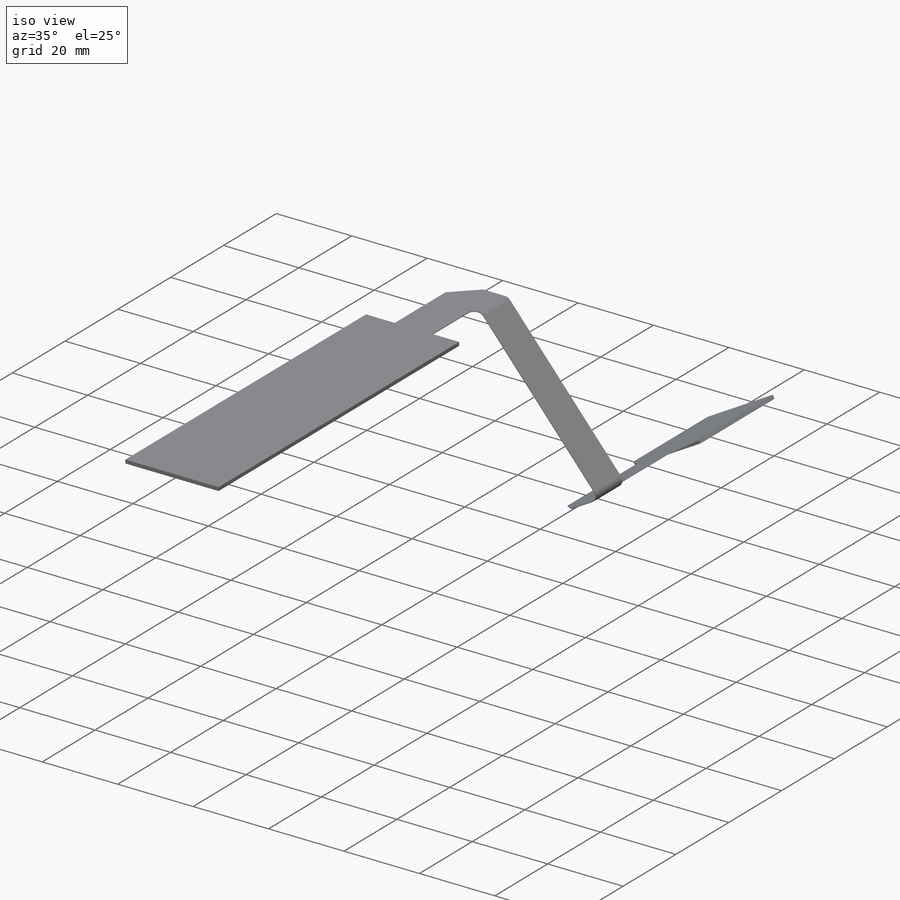
[diagram: iso view]
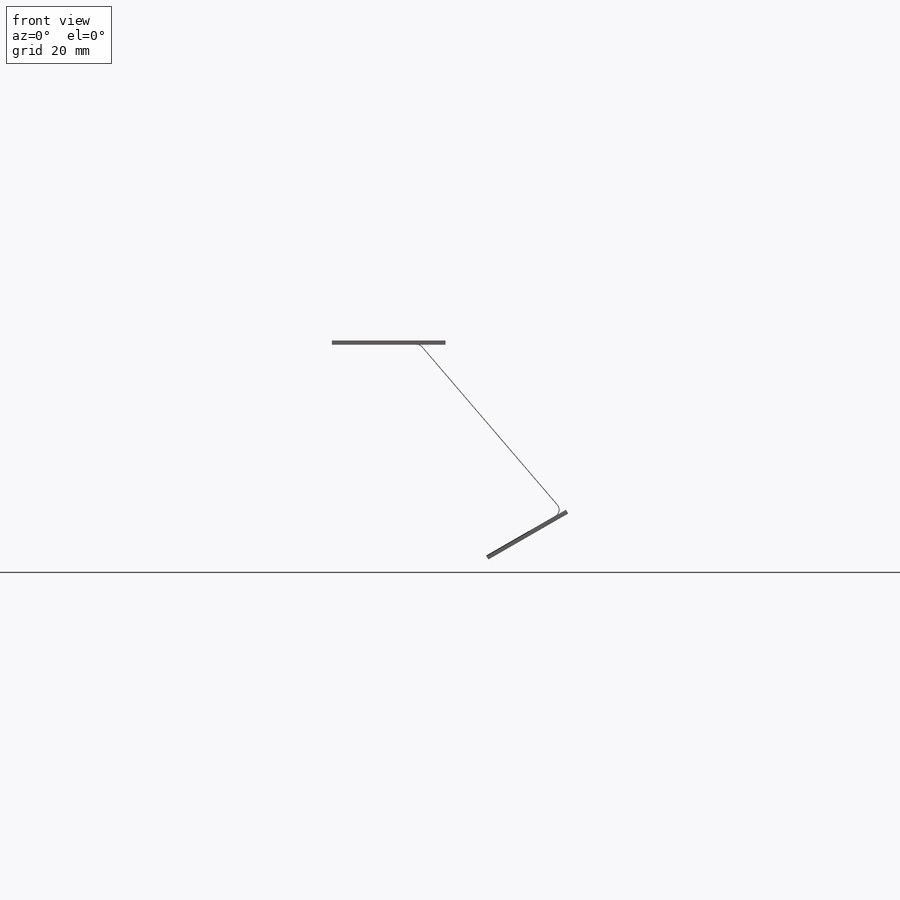
[diagram: front view]
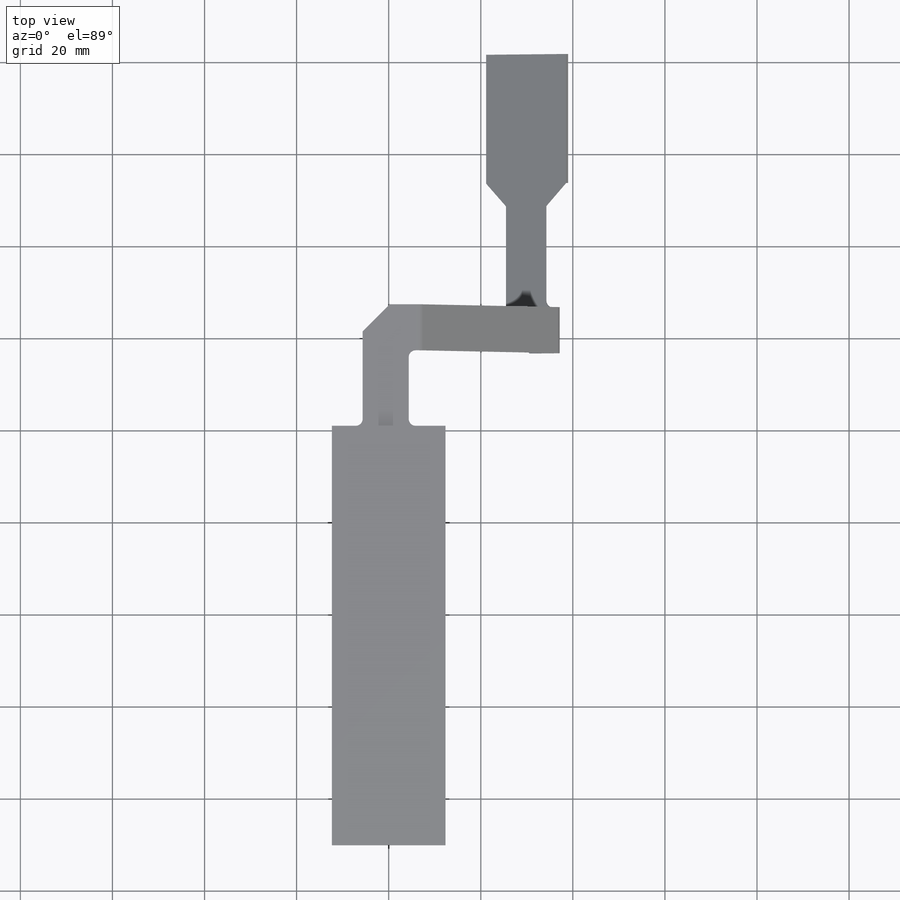
[diagram: top view]
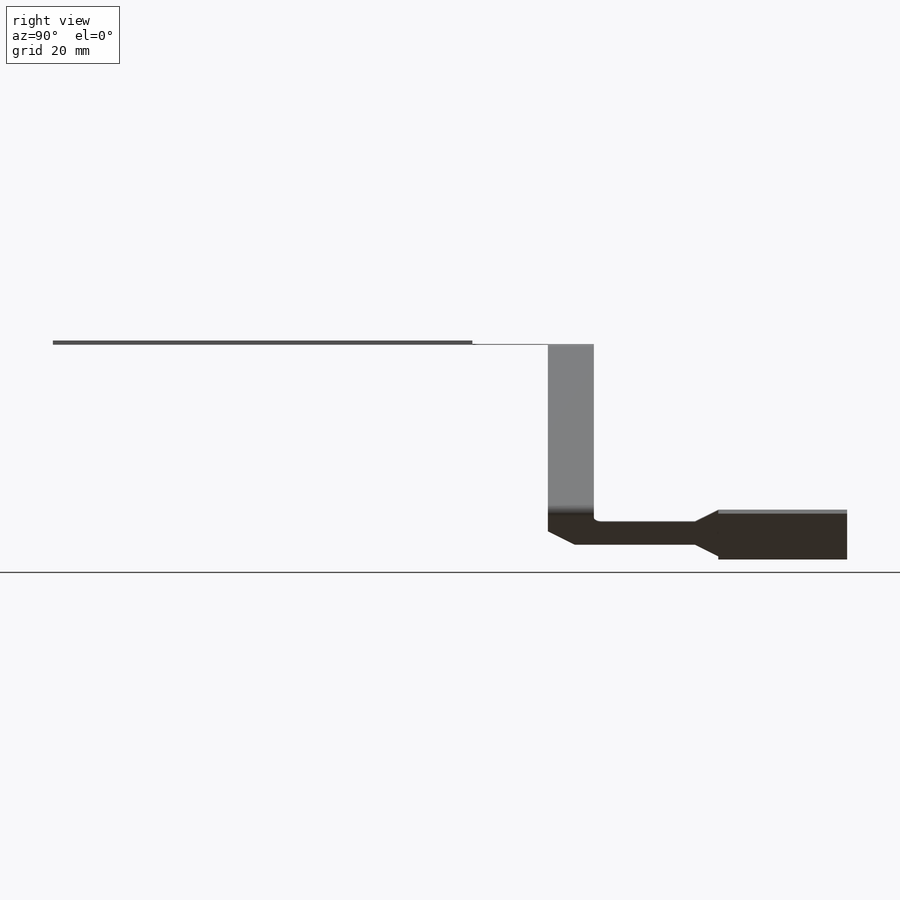
[diagram: right view]
SOLIDWORKS PART (.sldprt)
format: sldprt  version: not decoded by parser v0  size: 878,080 bytes
history: native  units: mm
features: sketch x10, sheet_metal_op x4, extrude x2, material x1, fillet x1, cut_extrude x1 + 3 further entries (+11 scaffold rows collapsed; 1 parser-record rows omitted)
feature tree (34):
  scaffold x11  (default folders/planes/origin — collapsed)
  material  "Custom Plastic"
  sketch  "Sketch1"  dims[D1=91.12mm D2=24.7mm D3=109.13mm]
  sheet_metal_op  "Sheet-Metal1"
  sheet_metal_op  "Base-Flange1"
  sketch  "Sketch4"  dims[c1.D1=8.0mm c1.D2=10.0mm c1.D3=10.0mm c1.D4=16.4mm c1.D5=52.0mm c1.D6=10.0mm c1.D7=22.0mm c2.D5=53.4mm c2.D8=10.0mm c3.D8=45.0deg c3.D9=10.0mm]
  sheet_metal_op  "Tab1"
  sketch  "Sketch8"  dims[D1=5.0mm D2=5.0mm D3=5.0mm D4=28.0mm]
  sheet_metal_op  "Tab2"
  fillet  "Fillet1"  Radius=1.5mm
  sketch  "Sketch5"  dims[c1.D1=~6.832299mm c2.D1=45.0deg c2.D2=10.0mm]
  cut_extrude  "Cut-Extrude1"  [1 undecoded]
  sketch  "Sketch6"  dims[D1=2.4mm]
  parser-record x1  (decoder bookkeeping rows leaked as tree rows — omitted from the tree; the rows remain in map.json)
  sketch  "Sketch7"  dims[D1=46.99mm]
  "SketchBend2"
  sketch  "Sketch9"
  extrude  "Boss-Extrude1"  Depth=0.94mm
  sketch  "Sketch11"
  extrude  "Boss-Extrude3"  Depth=0.99mm
  "Flat-Pattern1"
  sketch  "Bend-Lines1"
  sketch  "Bounding-Box1"
  "Flatten-<SketchBend2>1"
decode coverage: 9 of 18 modeling features carry decoded parameters; 3 rows unclassified (native names shown)
note: ~ marks probable driven/reference dimensions
note: 1 parameter value undecoded
note: suppression state not decoded; provenance and decode notes live in map.json
